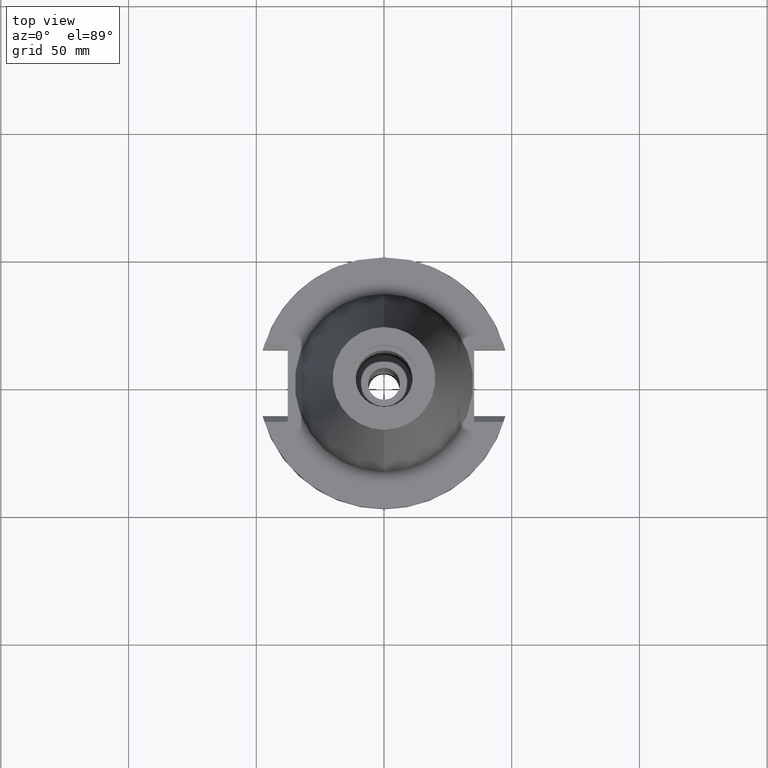
[diagram: clean part render]
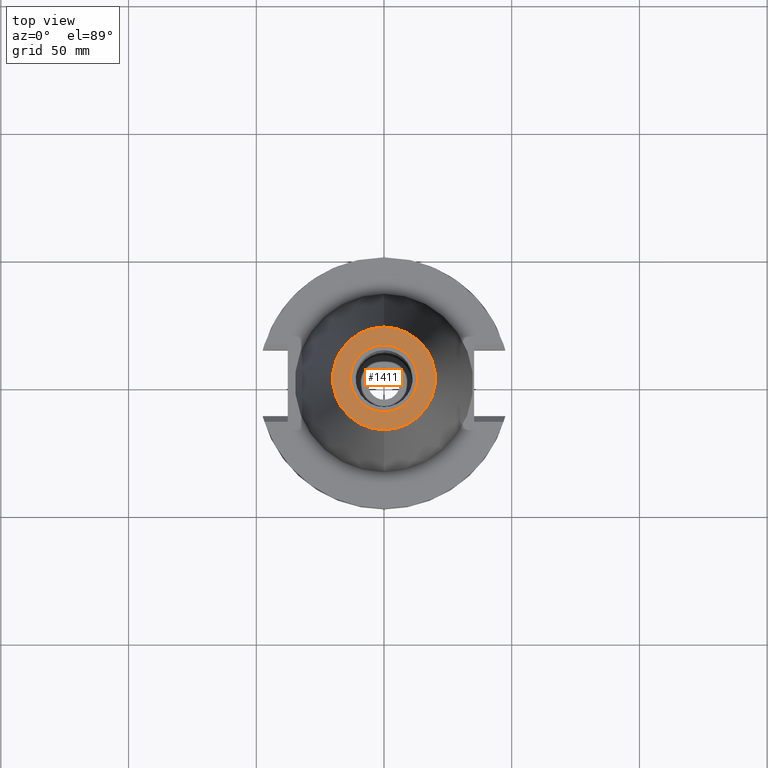
[diagram: same view with one face highlighted and labeled with its STEP entity id]
A machine part, top view. The second image highlights one B-rep face of the part: STEP entity #1411.
In plain terms, the highlighted planar face has unit normal (0, 0, -1).
Its self-contained STEP definition (entity closure, byte-faithful):
#17=CARTESIAN_POINT('',(0.E0,0.E0,1.016E2));
#18=DIRECTION('',(0.E0,0.E0,-1.E0));
#19=DIRECTION('',(0.E0,-1.E0,0.E0));
#20=AXIS2_PLACEMENT_3D('',#17,#18,#19);
#26=CARTESIAN_POINT('',(0.E0,0.E0,1.016E2));
#27=DIRECTION('',(0.E0,0.E0,-1.E0));
#28=DIRECTION('',(0.E0,1.E0,0.E0));
#29=AXIS2_PLACEMENT_3D('',#26,#27,#28);
#34=CARTESIAN_POINT('',(0.E0,1.398301715266E-14,1.016E2));
#35=DIRECTION('',(0.E0,0.E0,1.E0));
#36=DIRECTION('',(0.E0,-1.E0,0.E0));
#37=AXIS2_PLACEMENT_3D('',#34,#35,#36);
#42=CARTESIAN_POINT('',(0.E0,1.398301715266E-14,1.016E2));
#43=DIRECTION('',(0.E0,0.E0,1.E0));
#44=DIRECTION('',(0.E0,1.E0,0.E0));
#45=AXIS2_PLACEMENT_3D('',#42,#43,#44);
#1196=CARTESIAN_POINT('',(0.E0,-2.010832422388E1,1.016E2));
#1197=CARTESIAN_POINT('',(0.E0,2.010832422388E1,1.016E2));
#1198=VERTEX_POINT('',#1196);
#1199=VERTEX_POINT('',#1197);
#1200=CARTESIAN_POINT('',(0.E0,-1.3115E1,1.016E2));
#1201=CARTESIAN_POINT('',(0.E0,1.3115E1,1.016E2));
#1202=VERTEX_POINT('',#1200);
#1203=VERTEX_POINT('',#1201);
#1394=CARTESIAN_POINT('',(0.E0,1.244241147934E-14,1.016E2));
#1395=DIRECTION('',(0.E0,0.E0,-1.E0));
#1396=DIRECTION('',(0.E0,-1.E0,0.E0));
#1397=AXIS2_PLACEMENT_3D('',#1394,#1395,#1396);
#1398=PLANE('',#1397);
#1400=ORIENTED_EDGE('',*,*,#1399,.T.);
#1402=ORIENTED_EDGE('',*,*,#1401,.T.);
#1403=EDGE_LOOP('',(#1400,#1402));
#1404=FACE_OUTER_BOUND('',#1403,.F.);
#1406=ORIENTED_EDGE('',*,*,#1405,.T.);
#1408=ORIENTED_EDGE('',*,*,#1407,.T.);
#1409=EDGE_LOOP('',(#1406,#1408));
#1410=FACE_BOUND('',#1409,.F.);
#21=CIRCLE('',#20,2.010832422388E1);
#30=CIRCLE('',#29,2.010832422388E1);
#38=CIRCLE('',#37,1.3115E1);
#46=CIRCLE('',#45,1.3115E1);
#1399=EDGE_CURVE('',#1198,#1199,#21,.T.);
#1401=EDGE_CURVE('',#1199,#1198,#30,.T.);
#1405=EDGE_CURVE('',#1202,#1203,#38,.T.);
#1407=EDGE_CURVE('',#1203,#1202,#46,.T.);
#1411=ADVANCED_FACE('',(#1404,#1410),#1398,.F.);